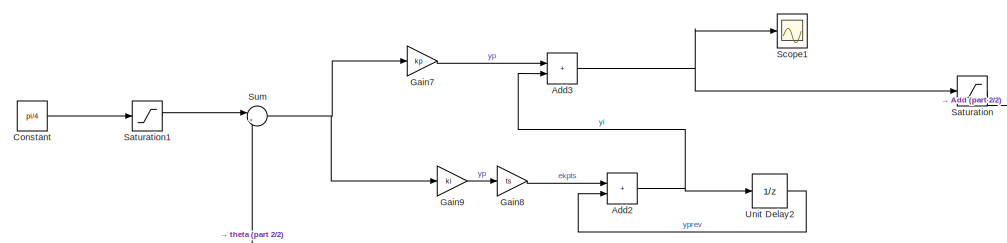
[diagram: root canvas - part 1/2, top left region]
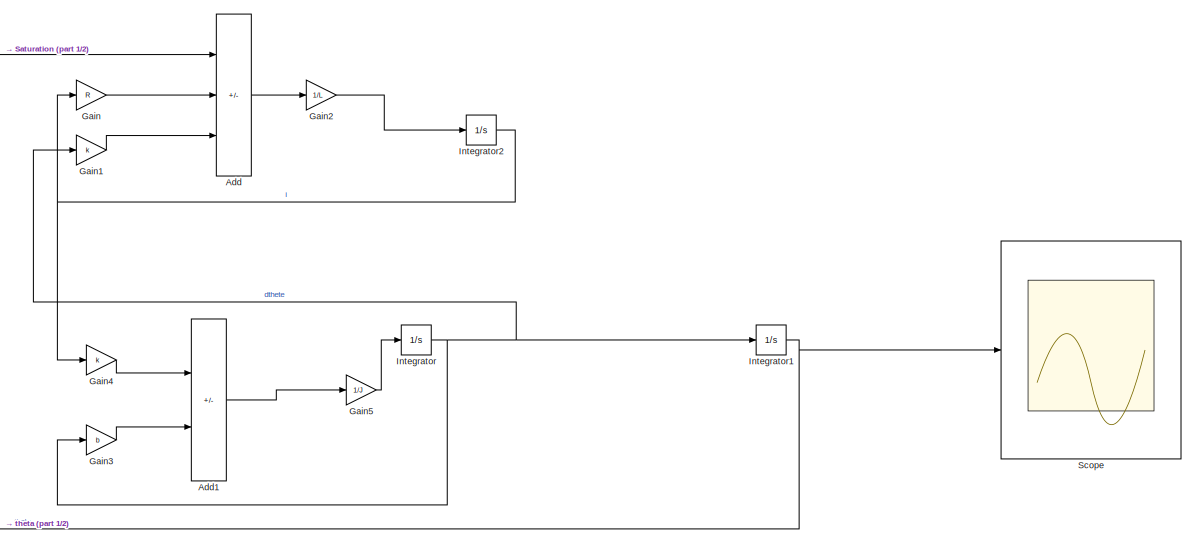
[diagram: root canvas - part 2/2, right side, full height]
MODEL slx_0b296601cf1c
KIND model
CONFIG AbsTol = auto
CONFIG EnableMultiTasking = off
CONFIG FixedStep = auto
CONFIG MaxStep = auto
CONFIG MinStep = auto
CONFIG RelTol = 1e-3
CONFIG SampleTimeConstraint = Unconstrained
CONFIG SolverName = ode15s
CONFIG StartTime = 0.0
CONFIG StopTime = 10.0
WORKSPACE source: mxarray member
WORKSPACE J = 5e-05
WORKSPACE L = 0.01
WORKSPACE R = 4
WORKSPACE b = 0.0005
WORKSPACE k = 0.2
WORKSPACE ki = 7.33
WORKSPACE kp = 9.39
WORKSPACE ts = 0.1
WORKSPACE v = 7.4
BLOCK [Sum] Add
  IconShape = rectangular
  Inputs = +--
BLOCK [Sum] Add1
  IconShape = rectangular
  Inputs = +-
BLOCK [Sum] Add2
  IconShape = rectangular
BLOCK [Sum] Add3
  IconShape = rectangular
BLOCK [Constant] Constant
  Value = pi/4
BLOCK [Gain] Gain
  Gain = R
BLOCK [Gain] Gain1
  Gain = k
BLOCK [Gain] Gain2
  Gain = 1/L
BLOCK [Gain] Gain3
  Gain = b
BLOCK [Gain] Gain4
  Gain = k
BLOCK [Gain] Gain5
  Gain = 1/J
BLOCK [Gain] Gain7
  Gain = kp
BLOCK [Gain] Gain8
  Gain = ts
BLOCK [Gain] Gain9
  Gain = ki
BLOCK [Integrator] Integrator
BLOCK [Integrator] Integrator1
BLOCK [Integrator] Integrator2
BLOCK [Saturate] Saturation
  LowerLimit = -v
  UpperLimit = v
BLOCK [Saturate] Saturation1
  LowerLimit = -pi/4
  UpperLimit = pi/4
BLOCK [Scope] Scope
  Floating = off
  NumInputPorts = 1
  ScopeSpecificationString = Simulink.scopes.TimeScopeBlockCfg('CurrentConfiguration', extmgr.ConfigurationSet(extmgr.Configuration('Core','General UI',true),extmgr.Configuration('Core','Source UI',true),extmgr.Configuration('Sources','WiredSimulink',true),extmgr.Configuration('Visuals','Time Domain',true,'SerializedDisplays',{struct('MinYLimReal','-1.16842','MaxYLimReal','2.94116','YLabelReal','','MinYLimMag','0.00000','MaxY...<+1653ch>
BLOCK [Scope] Scope1
  Floating = off
  NumInputPorts = 1
  ScopeSpecificationString = Simulink.scopes.TimeScopeBlockCfg('CurrentConfiguration', extmgr.ConfigurationSet(extmgr.Configuration('Core','General UI',true),extmgr.Configuration('Core','Source UI',true),extmgr.Configuration('Sources','WiredSimulink',true,'DataLoggingVariableName','ScopeData1'),extmgr.Configuration('Visuals','Time Domain',true,'SerializedDisplays',{struct('MinYLimReal','-1.04106','MaxYLimReal','8.94966','YLab...<+2233ch>
BLOCK [Sum] Sum
  Inputs = |+-
BLOCK [UnitDelay] Unit Delay2
  HasFrameUpgradeWarning = on
  SampleTime = ts
LINE Add1:1 -> Gain5:1
NET Add2:1 -> Add3:2, Unit Delay2:1
NET Add3:1 -> Saturation:1, Scope1:1
LINE Add:1 -> Gain2:1
LINE Constant:1 -> Saturation1:1
LINE Gain1:1 -> Add:3
LINE Gain2:1 -> Integrator2:1
LINE Gain3:1 -> Add1:2
LINE Gain4:1 -> Add1:1
LINE Gain5:1 -> Integrator:1
LINE Gain7:1 -> Add3:1
LINE Gain8:1 -> Add2:1
LINE Gain9:1 -> Gain8:1
LINE Gain:1 -> Add:2
NET Integrator1:1 -> Scope:1, Sum:2
NET Integrator2:1 -> Gain4:1, Gain:1
NET Integrator:1 -> Gain1:1, Gain3:1, Integrator1:1
LINE Saturation1:1 -> Sum:1
LINE Saturation:1 -> Add:1
NET Sum:1 -> Gain7:1, Gain9:1
LINE Unit Delay2:1 -> Add2:2
note: NET lines group one-source signal fan-out (src -> all destinations, sorted); 1:1 wires keep LINE
